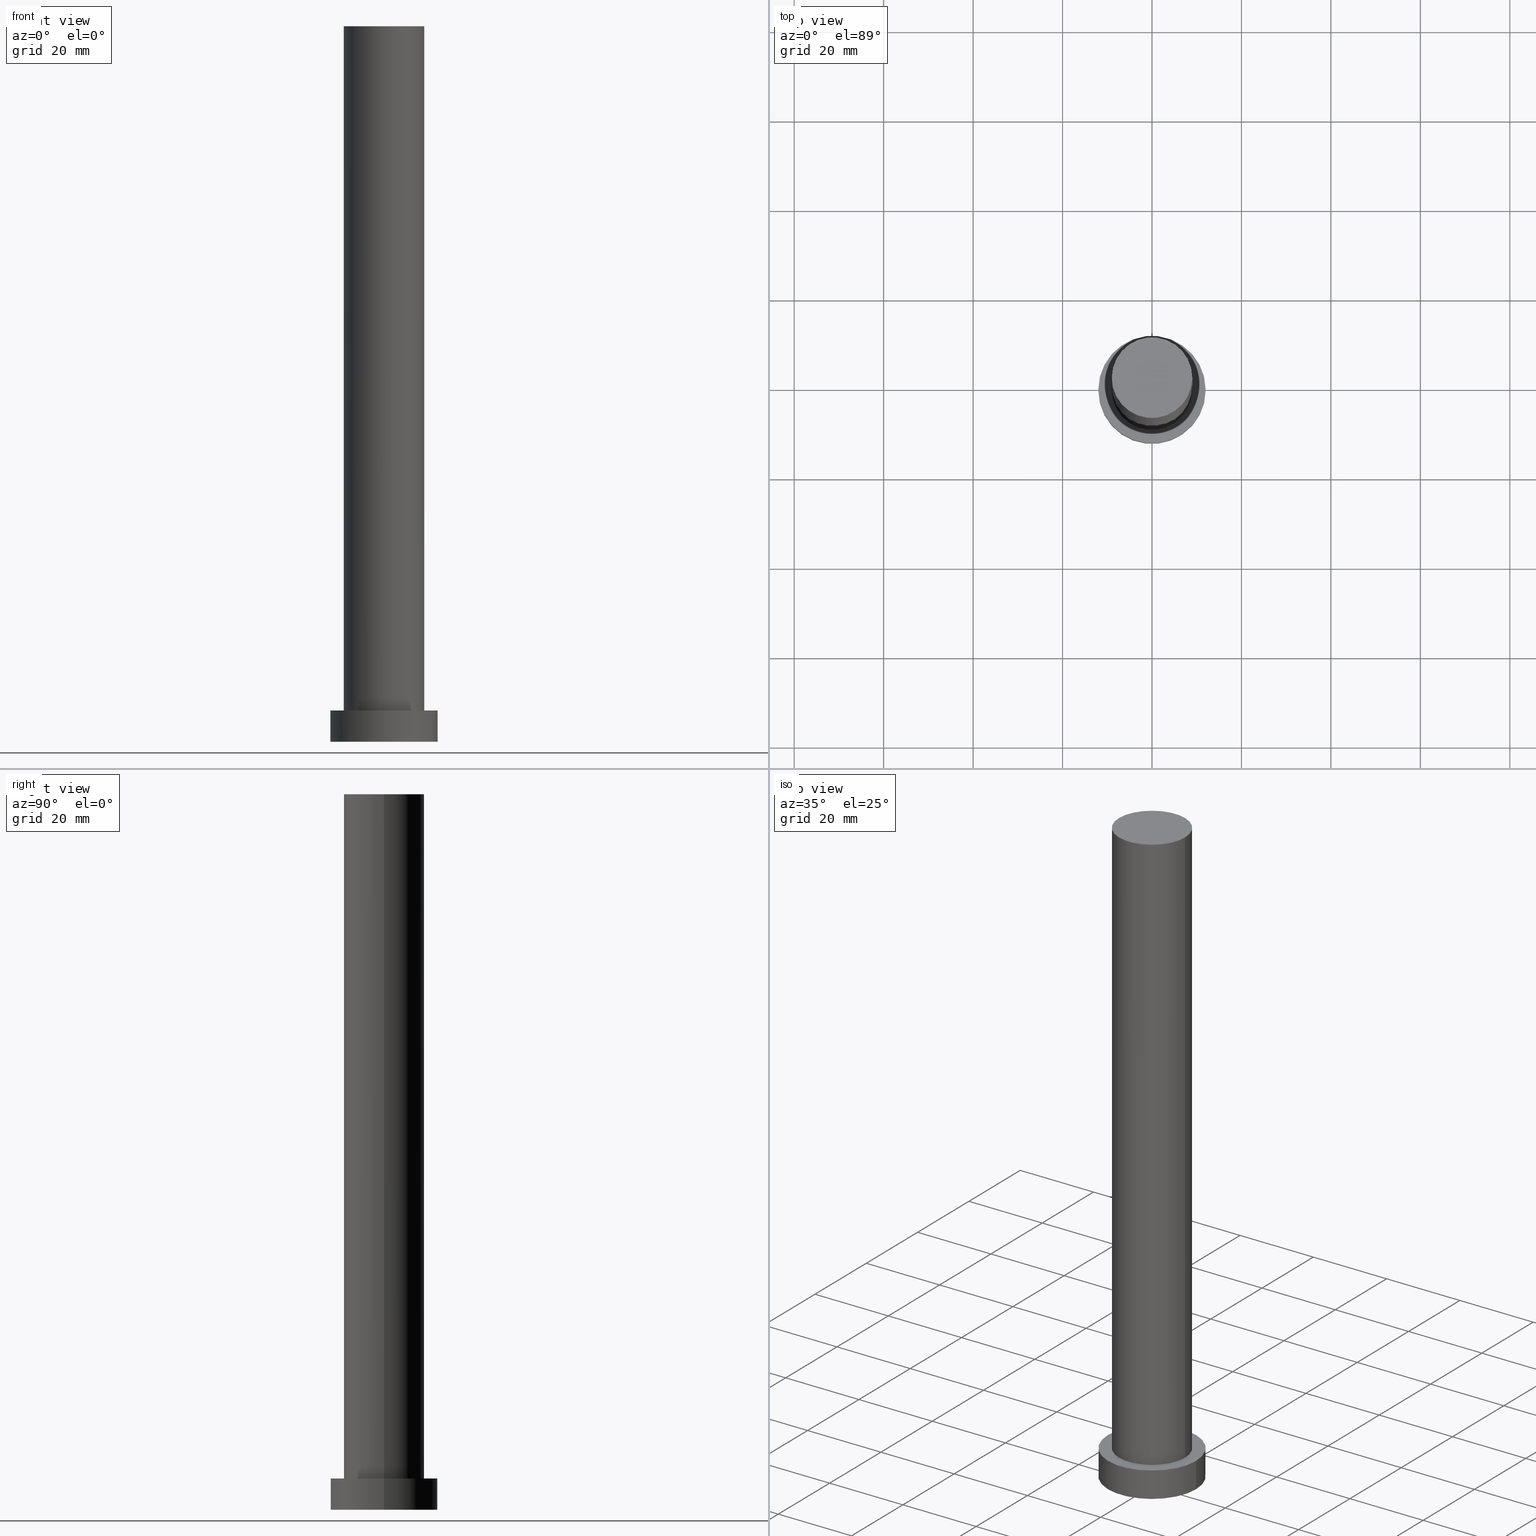
[diagram: canonical four-view strip — front | top / right | iso, engineering-drawing reading convention]
A machine part, canonical four-view strip (front | top / right | iso — engineering-drawing reading convention). The complete STEP part file that produces these views, byte-faithful:
ISO-10303-21;
HEADER;
FILE_DESCRIPTION (( 'STEP AP203' ),
    '1' );
FILE_NAME ('057d.STEP',
    '2023-02-12T10:41:35',
    ( '' ),
    ( '' ),
    'SwSTEP 2.0',
    'SolidWorks 2019',
    '' );
FILE_SCHEMA (( 'CONFIG_CONTROL_DESIGN' ));
ENDSEC;

DATA;
#1 = ADVANCED_FACE ( 'NONE', ( #210 ), #20, .F. ) ;
#2 = CARTESIAN_POINT ( 'NONE',  ( 0.000000000000000000, 0.000000000000000000, 0.000000000000000000 ) ) ;
#3 = LOCAL_TIME ( 11, 41, 35.00000000000000000, #181 ) ;
#4 = CARTESIAN_POINT ( 'NONE',  ( 0.000000000000000000, 0.000000000000000000, 7.000000000000000000 ) ) ;
#5 = SECURITY_CLASSIFICATION ( '', '', #162 ) ;
#6 = CALENDAR_DATE ( 2023, 12, 2 ) ;
#7 = APPROVAL_DATE_TIME ( #60, #247 ) ;
#8 = AXIS2_PLACEMENT_3D ( 'NONE', #192, #113, #188 ) ;
#9 = PERSON_AND_ORGANIZATION ( #109, #170 ) ;
#10 = ADVANCED_FACE ( 'NONE', ( #189 ), #205, .T. ) ;
#11 = VERTEX_POINT ( 'NONE', #96 ) ;
#12 = VERTEX_POINT ( 'NONE', #15 ) ;
#13 = AXIS2_PLACEMENT_3D ( 'NONE', #115, #173, #168 ) ;
#14 = CARTESIAN_POINT ( 'NONE',  ( -12.00000000000000178, 0.000000000000000000, 0.000000000000000000 ) ) ;
#15 = CARTESIAN_POINT ( 'NONE',  ( -9.000000000000000000, 0.000000000000000000, 7.000000000000000000 ) ) ;
#16 = DIRECTION ( 'NONE',  ( -1.000000000000000000, 0.000000000000000000, 0.000000000000000000 ) ) ;
#17 = CIRCLE ( 'NONE', #155, 12.00000000000000178 ) ;
#18 = ORIENTED_EDGE ( 'NONE', *, *, #213, .F. ) ;
#19 = CC_DESIGN_PERSON_AND_ORGANIZATION_ASSIGNMENT ( #212, #43, ( #154 ) ) ;
#20 = PLANE ( 'NONE',  #25 ) ;
#21 = DIRECTION ( 'NONE',  ( 0.000000000000000000, 0.000000000000000000, 1.000000000000000000 ) ) ;
#22 = DIRECTION ( 'NONE',  ( 0.000000000000000000, 0.000000000000000000, 1.000000000000000000 ) ) ;
#23 =( NAMED_UNIT ( * ) PLANE_ANGLE_UNIT ( ) SI_UNIT ( $, .RADIAN. ) );
#24 = CALENDAR_DATE ( 2023, 12, 2 ) ;
#25 = AXIS2_PLACEMENT_3D ( 'NONE', #2, #36, #238 ) ;
#26 = EDGE_CURVE ( 'NONE', #33, #222, #92, .T. ) ;
#27 = CC_DESIGN_APPROVAL ( #247, ( #63 ) ) ;
#28 = DIRECTION ( 'NONE',  ( 0.000000000000000000, 0.000000000000000000, 1.000000000000000000 ) ) ;
#29 = APPROVAL_ROLE ( '' ) ;
#30 = COORDINATED_UNIVERSAL_TIME_OFFSET ( 1, 0, .AHEAD. ) ;
#31 = EDGE_LOOP ( 'NONE', ( #161, #227, #254, #249 ) ) ;
#32 = APPLICATION_CONTEXT ( 'configuration controlled 3d designs of mechanical parts and assemblies' ) ;
#33 = VERTEX_POINT ( 'NONE', #149 ) ;
#34 = AXIS2_PLACEMENT_3D ( 'NONE', #223, #233, #97 ) ;
#35 = DIRECTION ( 'NONE',  ( 1.000000000000000000, 0.000000000000000000, 0.000000000000000000 ) ) ;
#36 = DIRECTION ( 'NONE',  ( 0.000000000000000000, 0.000000000000000000, 1.000000000000000000 ) ) ;
#37 = CC_DESIGN_DATE_AND_TIME_ASSIGNMENT ( #193, #81, ( #154 ) ) ;
#38 = CYLINDRICAL_SURFACE ( 'NONE', #13, 12.00000000000000178 ) ;
#39 = CARTESIAN_POINT ( 'NONE',  ( 9.000000000000000000, 1.102182119232617714E-15, 160.0000000000000000 ) ) ;
#40 = APPROVAL_ROLE ( '' ) ;
#41 = CARTESIAN_POINT ( 'NONE',  ( 0.000000000000000000, 0.000000000000000000, 7.000000000000000000 ) ) ;
#42 = CARTESIAN_POINT ( 'NONE',  ( -12.00000000000000178, 0.000000000000000000, 7.000000000000000000 ) ) ;
#43 = PERSON_AND_ORGANIZATION_ROLE ( 'creator' ) ;
#44 = AXIS2_PLACEMENT_3D ( 'NONE', #171, #167, #54 ) ;
#45 = CARTESIAN_POINT ( 'NONE',  ( 0.000000000000000000, 0.000000000000000000, 7.000000000000000000 ) ) ;
#46 = APPLICATION_PROTOCOL_DEFINITION ( 'international standard', 'config_control_design', 1994, #32 ) ;
#47 = CIRCLE ( 'NONE', #176, 12.00000000000000178 ) ;
#48 = CIRCLE ( 'NONE', #34, 9.000000000000000000 ) ;
#49 = PERSON_AND_ORGANIZATION_ROLE ( 'classification_officer' ) ;
#50 = ORIENTED_EDGE ( 'NONE', *, *, #169, .F. ) ;
#51 = ADVANCED_FACE ( 'NONE', ( #187 ), #38, .T. ) ;
#52 = CYLINDRICAL_SURFACE ( 'NONE', #190, 9.000000000000000000 ) ;
#53 = DIRECTION ( 'NONE',  ( -0.000000000000000000, -0.000000000000000000, -1.000000000000000000 ) ) ;
#54 = DIRECTION ( 'NONE',  ( 1.000000000000000000, 0.000000000000000000, 0.000000000000000000 ) ) ;
#55 = EDGE_CURVE ( 'NONE', #33, #11, #135, .T. ) ;
#56 = FACE_OUTER_BOUND ( 'NONE', #31, .T. ) ;
#57 = CARTESIAN_POINT ( 'NONE',  ( 12.00000000000000178, 1.469576158976824144E-15, 7.000000000000000000 ) ) ;
#58 = AXIS2_PLACEMENT_3D ( 'NONE', #45, #28, #74 ) ;
#59 = PERSON_AND_ORGANIZATION ( #109, #170 ) ;
#60 = DATE_AND_TIME ( #239, #75 ) ;
#61 = AXIS2_PLACEMENT_3D ( 'NONE', #131, #235, #207 ) ;
#62 = CARTESIAN_POINT ( 'NONE',  ( 9.000000000000000000, 1.102182119232617714E-15, 7.000000000000000000 ) ) ;
#63 = PRODUCT_DEFINITION_FORMATION_WITH_SPECIFIED_SOURCE ( 'LIBOVOLN�', '', #93, .NOT_KNOWN. ) ;
#64 = APPROVAL ( #156, 'NEUR�EN�' ) ;
#65 = EDGE_LOOP ( 'NONE', ( #166, #107 ) ) ;
#66 = ORIENTED_EDGE ( 'NONE', *, *, #202, .T. ) ;
#67 = APPROVAL_PERSON_ORGANIZATION ( #248, #179, #125 ) ;
#68 = EDGE_CURVE ( 'NONE', #12, #222, #129, .T. ) ;
#69 = EDGE_LOOP ( 'NONE', ( #245, #128 ) ) ;
#70 =( GEOMETRIC_REPRESENTATION_CONTEXT ( 3 ) GLOBAL_UNCERTAINTY_ASSIGNED_CONTEXT ( ( #197 ) ) GLOBAL_UNIT_ASSIGNED_CONTEXT ( ( #76, #23, #217 ) ) REPRESENTATION_CONTEXT ( 'NONE', 'WORKASPACE' ) );
#71 = DIRECTION ( 'NONE',  ( -0.000000000000000000, -0.000000000000000000, -1.000000000000000000 ) ) ;
#72 = CARTESIAN_POINT ( 'NONE',  ( 0.000000000000000000, 0.000000000000000000, 0.000000000000000000 ) ) ;
#73 = CARTESIAN_POINT ( 'NONE',  ( 12.00000000000000178, 1.469576158976824144E-15, 0.000000000000000000 ) ) ;
#74 = DIRECTION ( 'NONE',  ( 1.000000000000000000, 0.000000000000000000, 0.000000000000000000 ) ) ;
#75 = LOCAL_TIME ( 11, 41, 35.00000000000000000, #153 ) ;
#76 =( LENGTH_UNIT ( ) NAMED_UNIT ( * ) SI_UNIT ( .MILLI., .METRE. ) );
#77 = APPROVAL_STATUS ( 'not_yet_approved' ) ;
#78 = EDGE_CURVE ( 'NONE', #84, #204, #174, .T. ) ;
#79 = AXIS2_PLACEMENT_3D ( 'NONE', #41, #101, #216 ) ;
#80 = CLOSED_SHELL ( 'NONE', ( #83, #10, #51, #106, #1, #157, #151 ) ) ;
#81 = DATE_TIME_ROLE ( 'creation_date' ) ;
#82 = APPROVAL_DATE_TIME ( #127, #179 ) ;
#83 = ADVANCED_FACE ( 'NONE', ( #56 ), #98, .T. ) ;
#84 = VERTEX_POINT ( 'NONE', #114 ) ;
#85 = DIRECTION ( 'NONE',  ( 0.000000000000000000, 0.000000000000000000, 1.000000000000000000 ) ) ;
#86 = DATE_AND_TIME ( #229, #3 ) ;
#87 = VERTEX_POINT ( 'NONE', #73 ) ;
#88 = ORIENTED_EDGE ( 'NONE', *, *, #240, .F. ) ;
#89 = EDGE_CURVE ( 'NONE', #84, #87, #231, .T. ) ;
#90 = ORIENTED_EDGE ( 'NONE', *, *, #103, .T. ) ;
#91 = LOCAL_TIME ( 11, 41, 35.00000000000000000, #243 ) ;
#92 = LINE ( 'NONE', #39, #241 ) ;
#93 = PRODUCT ( '057d', '057d', '', ( #120 ) ) ;
#94 = AXIS2_PLACEMENT_3D ( 'NONE', #150, #71, #255 ) ;
#95 = PLANE ( 'NONE',  #119 ) ;
#96 = CARTESIAN_POINT ( 'NONE',  ( -9.000000000000000000, 0.000000000000000000, 160.0000000000000000 ) ) ;
#97 = DIRECTION ( 'NONE',  ( 1.000000000000000000, 0.000000000000000000, 0.000000000000000000 ) ) ;
#98 = CYLINDRICAL_SURFACE ( 'NONE', #61, 9.000000000000000000 ) ;
#99 = LOCAL_TIME ( 11, 41, 35.00000000000000000, #30 ) ;
#100 = PERSON_AND_ORGANIZATION ( #109, #170 ) ;
#101 = DIRECTION ( 'NONE',  ( 0.000000000000000000, 0.000000000000000000, 1.000000000000000000 ) ) ;
#102 = PERSON_AND_ORGANIZATION_ROLE ( 'design_owner' ) ;
#103 = EDGE_CURVE ( 'NONE', #87, #126, #17, .T. ) ;
#104 = CALENDAR_DATE ( 2023, 12, 2 ) ;
#105 = VECTOR ( 'NONE', #236, 1000.000000000000000 ) ;
#106 = ADVANCED_FACE ( 'NONE', ( #111, #214 ), #138, .T. ) ;
#107 = ORIENTED_EDGE ( 'NONE', *, *, #122, .F. ) ;
#108 = VECTOR ( 'NONE', #53, 1000.000000000000000 ) ;
#109 = PERSON ( 'NEUR�EN�', 'NEUR�EN�', 'NEUR�EN�', ('NEUR�EN�'), ('NEUR�EN�'), ('NEUR�EN�') ) ;
#110 = CC_DESIGN_SECURITY_CLASSIFICATION ( #5, ( #63 ) ) ;
#111 = FACE_BOUND ( 'NONE', #65, .T. ) ;
#112 = DIRECTION ( 'NONE',  ( 1.000000000000000000, 0.000000000000000000, -0.000000000000000000 ) ) ;
#113 = DIRECTION ( 'NONE',  ( 0.000000000000000000, 0.000000000000000000, 1.000000000000000000 ) ) ;
#114 = CARTESIAN_POINT ( 'NONE',  ( 12.00000000000000178, 1.469576158976824144E-15, 7.000000000000000000 ) ) ;
#115 = CARTESIAN_POINT ( 'NONE',  ( 0.000000000000000000, 0.000000000000000000, 7.000000000000000000 ) ) ;
#116 = CC_DESIGN_PERSON_AND_ORGANIZATION_ASSIGNMENT ( #250, #198, ( #63 ) ) ;
#117 = CC_DESIGN_PERSON_AND_ORGANIZATION_ASSIGNMENT ( #123, #220, ( #63 ) ) ;
#118 = COORDINATED_UNIVERSAL_TIME_OFFSET ( 1, 0, .AHEAD. ) ;
#119 = AXIS2_PLACEMENT_3D ( 'NONE', #132, #209, #112 ) ;
#120 = MECHANICAL_CONTEXT ( 'NONE', #32, 'mechanical' ) ;
#121 = ORIENTED_EDGE ( 'NONE', *, *, #89, .T. ) ;
#122 = EDGE_CURVE ( 'NONE', #222, #12, #225, .T. ) ;
#123 = PERSON_AND_ORGANIZATION ( #109, #170 ) ;
#124 = MANIFOLD_SOLID_BREP ( 'P�idat vysunut�m3', #80 ) ;
#125 = APPROVAL_ROLE ( '' ) ;
#126 = VERTEX_POINT ( 'NONE', #14 ) ;
#127 = DATE_AND_TIME ( #104, #99 ) ;
#128 = ORIENTED_EDGE ( 'NONE', *, *, #55, .T. ) ;
#129 = CIRCLE ( 'NONE', #8, 9.000000000000000000 ) ;
#130 = DIRECTION ( 'NONE',  ( 0.000000000000000000, 0.000000000000000000, 1.000000000000000000 ) ) ;
#131 = CARTESIAN_POINT ( 'NONE',  ( 0.000000000000000000, 0.000000000000000000, 160.0000000000000000 ) ) ;
#132 = CARTESIAN_POINT ( 'NONE',  ( 0.000000000000000000, 0.000000000000000000, 160.0000000000000000 ) ) ;
#133 = PRODUCT_RELATED_PRODUCT_CATEGORY ( 'detail', '', ( #93 ) ) ;
#134 = CARTESIAN_POINT ( 'NONE',  ( 0.000000000000000000, 0.000000000000000000, 0.000000000000000000 ) ) ;
#135 = CIRCLE ( 'NONE', #44, 9.000000000000000000 ) ;
#136 = LOCAL_TIME ( 11, 41, 35.00000000000000000, #118 ) ;
#137 = CC_DESIGN_PERSON_AND_ORGANIZATION_ASSIGNMENT ( #180, #102, ( #93 ) ) ;
#138 = PLANE ( 'NONE',  #79 ) ;
#139 = APPLICATION_PROTOCOL_DEFINITION ( 'international standard', 'config_control_design', 1994, #228 ) ;
#140 = CC_DESIGN_APPROVAL ( #179, ( #5 ) ) ;
#141 = DIRECTION ( 'NONE',  ( 1.000000000000000000, 0.000000000000000000, 0.000000000000000000 ) ) ;
#142 = LINE ( 'NONE', #42, #219 ) ;
#143 = AXIS2_PLACEMENT_3D ( 'NONE', #177, #215, #175 ) ;
#144 = ORIENTED_EDGE ( 'NONE', *, *, #103, .F. ) ;
#145 = DIRECTION ( 'NONE',  ( 1.000000000000000000, 0.000000000000000000, 0.000000000000000000 ) ) ;
#146 = ORIENTED_EDGE ( 'NONE', *, *, #78, .T. ) ;
#147 = DIRECTION ( 'NONE',  ( 1.000000000000000000, 0.000000000000000000, 0.000000000000000000 ) ) ;
#148 = DIRECTION ( 'NONE',  ( -0.000000000000000000, -0.000000000000000000, -1.000000000000000000 ) ) ;
#149 = CARTESIAN_POINT ( 'NONE',  ( 9.000000000000000000, 1.102182119232617714E-15, 160.0000000000000000 ) ) ;
#150 = CARTESIAN_POINT ( 'NONE',  ( 0.000000000000000000, 0.000000000000000000, 7.000000000000000000 ) ) ;
#151 = ADVANCED_FACE ( 'NONE', ( #165 ), #95, .T. ) ;
#152 = CIRCLE ( 'NONE', #200, 12.00000000000000178 ) ;
#153 = COORDINATED_UNIVERSAL_TIME_OFFSET ( 1, 0, .AHEAD. ) ;
#154 = PRODUCT_DEFINITION ( 'NEZN�M�', '', #63, #252 ) ;
#155 = AXIS2_PLACEMENT_3D ( 'NONE', #134, #130, #35 ) ;
#156 = APPROVAL_STATUS ( 'not_yet_approved' ) ;
#157 = ADVANCED_FACE ( 'NONE', ( #211 ), #52, .T. ) ;
#158 = SHAPE_DEFINITION_REPRESENTATION ( #234, #184 ) ;
#159 = CC_DESIGN_APPROVAL ( #64, ( #154 ) ) ;
#160 = ORIENTED_EDGE ( 'NONE', *, *, #240, .T. ) ;
#161 = ORIENTED_EDGE ( 'NONE', *, *, #55, .F. ) ;
#162 = SECURITY_CLASSIFICATION_LEVEL ( 'unclassified' ) ;
#163 = ORIENTED_EDGE ( 'NONE', *, *, #89, .F. ) ;
#164 = EDGE_LOOP ( 'NONE', ( #50, #144 ) ) ;
#165 = FACE_OUTER_BOUND ( 'NONE', #69, .T. ) ;
#166 = ORIENTED_EDGE ( 'NONE', *, *, #68, .F. ) ;
#167 = DIRECTION ( 'NONE',  ( 0.000000000000000000, 0.000000000000000000, 1.000000000000000000 ) ) ;
#168 = DIRECTION ( 'NONE',  ( -1.000000000000000000, 0.000000000000000000, 0.000000000000000000 ) ) ;
#169 = EDGE_CURVE ( 'NONE', #126, #87, #152, .T. ) ;
#170 = ORGANIZATION ( 'NEUR�EN�', 'NEUR�EN�', '' ) ;
#171 = CARTESIAN_POINT ( 'NONE',  ( 0.000000000000000000, 0.000000000000000000, 160.0000000000000000 ) ) ;
#172 = CARTESIAN_POINT ( 'NONE',  ( -9.000000000000000000, 0.000000000000000000, 160.0000000000000000 ) ) ;
#173 = DIRECTION ( 'NONE',  ( -0.000000000000000000, -0.000000000000000000, -1.000000000000000000 ) ) ;
#174 = CIRCLE ( 'NONE', #218, 12.00000000000000178 ) ;
#175 = DIRECTION ( 'NONE',  ( 1.000000000000000000, 0.000000000000000000, 0.000000000000000000 ) ) ;
#176 = AXIS2_PLACEMENT_3D ( 'NONE', #4, #22, #141 ) ;
#177 = CARTESIAN_POINT ( 'NONE',  ( 0.000000000000000000, 0.000000000000000000, 0.000000000000000000 ) ) ;
#178 = APPROVAL_DATE_TIME ( #244, #64 ) ;
#179 = APPROVAL ( #203, 'NEUR�EN�' ) ;
#180 = PERSON_AND_ORGANIZATION ( #109, #170 ) ;
#181 = COORDINATED_UNIVERSAL_TIME_OFFSET ( 1, 0, .AHEAD. ) ;
#182 = ORIENTED_EDGE ( 'NONE', *, *, #68, .T. ) ;
#183 = EDGE_LOOP ( 'NONE', ( #230, #224, #66, #182 ) ) ;
#184 = ADVANCED_BREP_SHAPE_REPRESENTATION ( '057d', ( #124, #143 ), #70 ) ;
#185 = EDGE_LOOP ( 'NONE', ( #201, #121, #90, #88 ) ) ;
#186 = CARTESIAN_POINT ( 'NONE',  ( 0.000000000000000000, 0.000000000000000000, 160.0000000000000000 ) ) ;
#187 = FACE_OUTER_BOUND ( 'NONE', #251, .T. ) ;
#188 = DIRECTION ( 'NONE',  ( 1.000000000000000000, 0.000000000000000000, 0.000000000000000000 ) ) ;
#189 = FACE_OUTER_BOUND ( 'NONE', #185, .T. ) ;
#190 = AXIS2_PLACEMENT_3D ( 'NONE', #186, #148, #16 ) ;
#191 = CARTESIAN_POINT ( 'NONE',  ( 0.000000000000000000, 0.000000000000000000, 7.000000000000000000 ) ) ;
#192 = CARTESIAN_POINT ( 'NONE',  ( 0.000000000000000000, 0.000000000000000000, 7.000000000000000000 ) ) ;
#193 = DATE_AND_TIME ( #6, #136 ) ;
#194 = DIRECTION ( 'NONE',  ( -0.000000000000000000, -0.000000000000000000, -1.000000000000000000 ) ) ;
#195 = EDGE_CURVE ( 'NONE', #11, #33, #48, .T. ) ;
#196 = CARTESIAN_POINT ( 'NONE',  ( -12.00000000000000178, 0.000000000000000000, 7.000000000000000000 ) ) ;
#197 = UNCERTAINTY_MEASURE_WITH_UNIT (LENGTH_MEASURE( 1.000000000000000082E-05 ), #76, 'distance_accuracy_value', 'NONE');
#198 = PERSON_AND_ORGANIZATION_ROLE ( 'creator' ) ;
#199 = ORIENTED_EDGE ( 'NONE', *, *, #213, .T. ) ;
#200 = AXIS2_PLACEMENT_3D ( 'NONE', #72, #85, #145 ) ;
#201 = ORIENTED_EDGE ( 'NONE', *, *, #78, .F. ) ;
#202 = EDGE_CURVE ( 'NONE', #11, #12, #208, .T. ) ;
#203 = APPROVAL_STATUS ( 'not_yet_approved' ) ;
#204 = VERTEX_POINT ( 'NONE', #196 ) ;
#205 = CYLINDRICAL_SURFACE ( 'NONE', #94, 12.00000000000000178 ) ;
#206 = APPROVAL_PERSON_ORGANIZATION ( #100, #247, #40 ) ;
#207 = DIRECTION ( 'NONE',  ( -1.000000000000000000, 0.000000000000000000, 0.000000000000000000 ) ) ;
#208 = LINE ( 'NONE', #172, #105 ) ;
#209 = DIRECTION ( 'NONE',  ( 0.000000000000000000, 0.000000000000000000, 1.000000000000000000 ) ) ;
#210 = FACE_OUTER_BOUND ( 'NONE', #164, .T. ) ;
#211 = FACE_OUTER_BOUND ( 'NONE', #183, .T. ) ;
#212 = PERSON_AND_ORGANIZATION ( #109, #170 ) ;
#213 = EDGE_CURVE ( 'NONE', #204, #84, #47, .T. ) ;
#214 = FACE_OUTER_BOUND ( 'NONE', #246, .T. ) ;
#215 = DIRECTION ( 'NONE',  ( 0.000000000000000000, 0.000000000000000000, 1.000000000000000000 ) ) ;
#216 = DIRECTION ( 'NONE',  ( 1.000000000000000000, 0.000000000000000000, -0.000000000000000000 ) ) ;
#217 =( NAMED_UNIT ( * ) SI_UNIT ( $, .STERADIAN. ) SOLID_ANGLE_UNIT ( ) );
#218 = AXIS2_PLACEMENT_3D ( 'NONE', #191, #21, #147 ) ;
#219 = VECTOR ( 'NONE', #194, 1000.000000000000000 ) ;
#220 = PERSON_AND_ORGANIZATION_ROLE ( 'design_supplier' ) ;
#221 = DATE_TIME_ROLE ( 'classification_date' ) ;
#222 = VERTEX_POINT ( 'NONE', #62 ) ;
#223 = CARTESIAN_POINT ( 'NONE',  ( 0.000000000000000000, 0.000000000000000000, 160.0000000000000000 ) ) ;
#224 = ORIENTED_EDGE ( 'NONE', *, *, #195, .F. ) ;
#225 = CIRCLE ( 'NONE', #58, 9.000000000000000000 ) ;
#226 = CC_DESIGN_DATE_AND_TIME_ASSIGNMENT ( #86, #221, ( #5 ) ) ;
#227 = ORIENTED_EDGE ( 'NONE', *, *, #26, .T. ) ;
#228 = APPLICATION_CONTEXT ( 'configuration controlled 3d designs of mechanical parts and assemblies' ) ;
#229 = CALENDAR_DATE ( 2023, 12, 2 ) ;
#230 = ORIENTED_EDGE ( 'NONE', *, *, #26, .F. ) ;
#231 = LINE ( 'NONE', #57, #108 ) ;
#232 = DIRECTION ( 'NONE',  ( -0.000000000000000000, -0.000000000000000000, -1.000000000000000000 ) ) ;
#233 = DIRECTION ( 'NONE',  ( 0.000000000000000000, 0.000000000000000000, 1.000000000000000000 ) ) ;
#234 = PRODUCT_DEFINITION_SHAPE ( 'NONE', 'NONE',  #154 ) ;
#235 = DIRECTION ( 'NONE',  ( -0.000000000000000000, -0.000000000000000000, -1.000000000000000000 ) ) ;
#236 = DIRECTION ( 'NONE',  ( -0.000000000000000000, -0.000000000000000000, -1.000000000000000000 ) ) ;
#237 = CC_DESIGN_PERSON_AND_ORGANIZATION_ASSIGNMENT ( #9, #49, ( #5 ) ) ;
#238 = DIRECTION ( 'NONE',  ( 1.000000000000000000, 0.000000000000000000, -0.000000000000000000 ) ) ;
#239 = CALENDAR_DATE ( 2023, 12, 2 ) ;
#240 = EDGE_CURVE ( 'NONE', #204, #126, #142, .T. ) ;
#241 = VECTOR ( 'NONE', #232, 1000.000000000000000 ) ;
#242 = APPROVAL_PERSON_ORGANIZATION ( #59, #64, #29 ) ;
#243 = COORDINATED_UNIVERSAL_TIME_OFFSET ( 1, 0, .AHEAD. ) ;
#244 = DATE_AND_TIME ( #24, #91 ) ;
#245 = ORIENTED_EDGE ( 'NONE', *, *, #195, .T. ) ;
#246 = EDGE_LOOP ( 'NONE', ( #199, #146 ) ) ;
#247 = APPROVAL ( #77, 'NEUR�EN�' ) ;
#248 = PERSON_AND_ORGANIZATION ( #109, #170 ) ;
#249 = ORIENTED_EDGE ( 'NONE', *, *, #202, .F. ) ;
#250 = PERSON_AND_ORGANIZATION ( #109, #170 ) ;
#251 = EDGE_LOOP ( 'NONE', ( #163, #18, #160, #253 ) ) ;
#252 = DESIGN_CONTEXT ( 'detailed design', #228, 'design' ) ;
#253 = ORIENTED_EDGE ( 'NONE', *, *, #169, .T. ) ;
#254 = ORIENTED_EDGE ( 'NONE', *, *, #122, .T. ) ;
#255 = DIRECTION ( 'NONE',  ( -1.000000000000000000, 0.000000000000000000, 0.000000000000000000 ) ) ;
ENDSEC;
END-ISO-10303-21;
